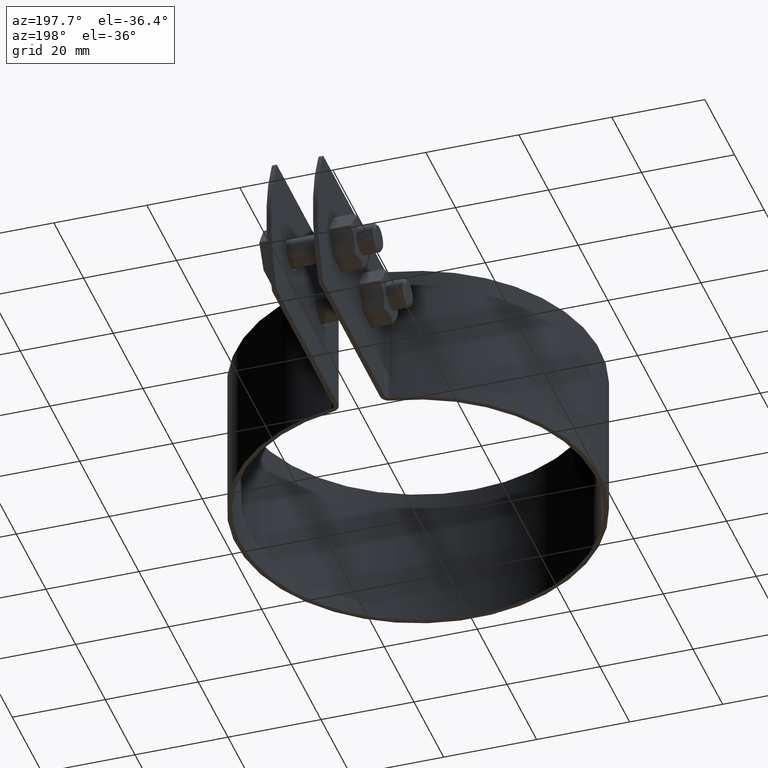
[diagram: clean part render]
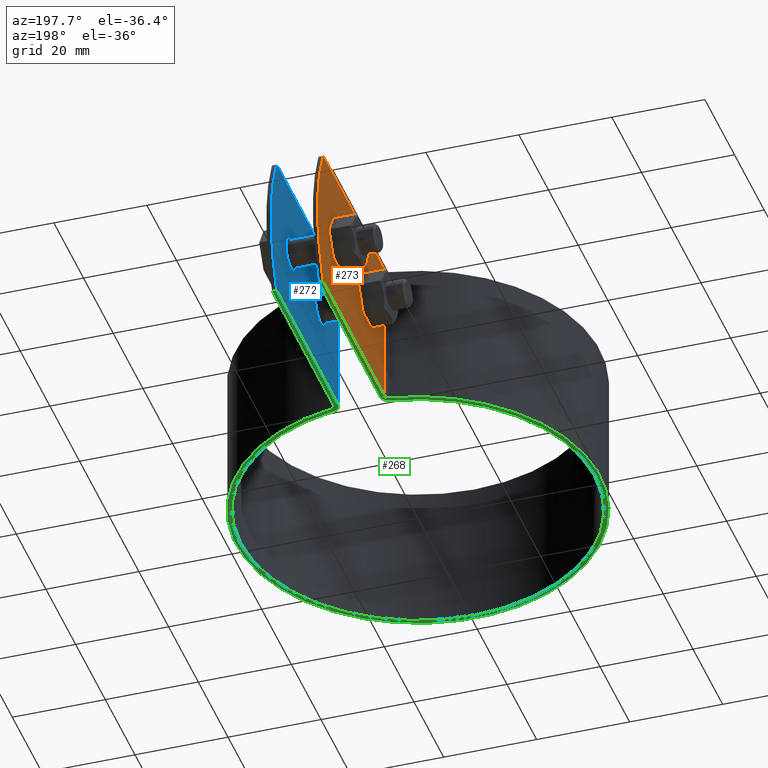
[diagram: same view with three faces highlighted in distinct colors, each labeled with its STEP entity id]
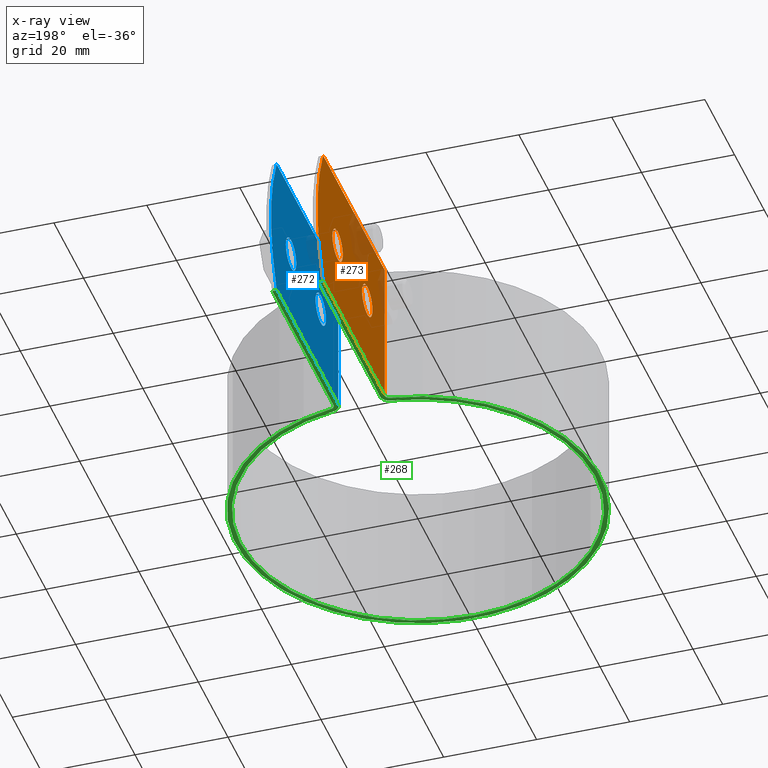
[diagram: x-ray of the same camera — body ghosted, the three highlighted faces saturated]
A machine part, auxiliary view with three faces highlighted in distinct colors.
The next image is the same camera in x-ray (body ghosted, the three faces saturated) — at least one of them is partly hidden behind the body in this view.
Their STEP definitions:

[orange] entity #273 — the highlighted planar face has unit normal (-1, 0, 0).
#273 = ADVANCED_FACE( '', ( #375, #376, #377 ), #378, .T. );
#375 = FACE_BOUND( '', #583, .T. );
#376 = FACE_OUTER_BOUND( '', #584, .T. );
#377 = FACE_BOUND( '', #585, .T. );
#378 = PLANE( '', #586 );
#583 = EDGE_LOOP( '', ( #830 ) );
#584 = EDGE_LOOP( '', ( #831, #832, #833, #834, #835, #836 ) );
#585 = EDGE_LOOP( '', ( #837 ) );
#586 = AXIS2_PLACEMENT_3D( '', #838, #839, #840 );
#830 = ORIENTED_EDGE( '', *, *, #1472, .T. );
#831 = ORIENTED_EDGE( '', *, *, #1471, .T. );
#832 = ORIENTED_EDGE( '', *, *, #1480, .T. );
#833 = ORIENTED_EDGE( '', *, *, #1461, .T. );
#834 = ORIENTED_EDGE( '', *, *, #1481, .T. );
#835 = ORIENTED_EDGE( '', *, *, #1482, .F. );
#836 = ORIENTED_EDGE( '', *, *, #1469, .T. );
#837 = ORIENTED_EDGE( '', *, *, #1483, .T. );
#838 = CARTESIAN_POINT( '', ( -5.50000000000000, 84.8836706246900, -16.0000000000000 ) );
#839 = DIRECTION( '', ( -1.00000000000000, 6.06692130572647E-017, 0.000000000000000 ) );
#840 = DIRECTION( '', ( -6.06692130572647E-017, -1.00000000000000, 0.000000000000000 ) );
#1461 = EDGE_CURVE( '', #1677, #1675, #1678, .T. );
#1469 = EDGE_CURVE( '', #1687, #1689, #1691, .T. );
#1471 = EDGE_CURVE( '', #1689, #1692, #1694, .T. );
#1472 = EDGE_CURVE( '', #1695, #1695, #1696, .F. );
#1480 = EDGE_CURVE( '', #1692, #1677, #1710, .T. );
#1481 = EDGE_CURVE( '', #1675, #1711, #1712, .T. );
#1482 = EDGE_CURVE( '', #1687, #1711, #1713, .T. );
#1483 = EDGE_CURVE( '', #1714, #1714, #1715, .F. );
#1675 = VERTEX_POINT( '', #2022 );
#1677 = VERTEX_POINT( '', #2024 );
#1678 = LINE( '', #2025, #2026 );
#1687 = VERTEX_POINT( '', #2037 );
#1689 = VERTEX_POINT( '', #2040 );
#1691 = LINE( '', #2043, #2044 );
#1692 = VERTEX_POINT( '', #2045 );
#1694 = CIRCLE( '', #2048, 35.0000000000000 );
#1695 = VERTEX_POINT( '', #2049 );
#1696 = CIRCLE( '', #2050, 3.50000000000000 );
#1710 = LINE( '', #2068, #2069 );
#1711 = VERTEX_POINT( '', #2070 );
#1712 = LINE( '', #2071, #2072 );
#1713 = LINE( '', #2073, #2074 );
#1714 = VERTEX_POINT( '', #2075 );
#1715 = CIRCLE( '', #2076, 3.50000000000000 );
#2022 = CARTESIAN_POINT( '', ( -5.50000000000000, 39.6203546172924, -16.0000000000000 ) );
#2024 = CARTESIAN_POINT( '', ( -5.50000000000000, 81.0321055773485, -16.0000000000000 ) );
#2025 = CARTESIAN_POINT( '', ( -5.50000000000000, 84.8836706246900, -16.0000000000000 ) );
#2026 = VECTOR( '', #2579, 1000.00000000000 );
#2037 = CARTESIAN_POINT( '', ( -5.50000000000000, 81.0321055773485, 16.0000000000000 ) );
#2040 = CARTESIAN_POINT( '', ( -5.50000000000000, 81.5064472263738, 15.0000000000000 ) );
#2043 = CARTESIAN_POINT( '', ( -5.49999999999999, 94.1305014177241, -11.6138430333747 ) );
#2044 = VECTOR( '', #2593, 1000.00000000000 );
#2045 = CARTESIAN_POINT( '', ( -5.50000000000002, 81.5064472263738, -15.0000000000000 ) );
#2048 = AXIS2_PLACEMENT_3D( '', #2595, #2596, #2597 );
#2049 = CARTESIAN_POINT( '', ( -5.49999999999999, 67.8836706246900, -8.67361737988404E-016 ) );
#2050 = AXIS2_PLACEMENT_3D( '', #2598, #2599, #2600 );
#2068 = CARTESIAN_POINT( '', ( -5.50000000000000, 81.7395358921664, -14.5086059462172 ) );
#2069 = VECTOR( '', #2614, 1000.00000000000 );
#2070 = CARTESIAN_POINT( '', ( -5.50000000000000, 39.6203546172924, 16.0000000000000 ) );
#2071 = CARTESIAN_POINT( '', ( -5.50000000000000, 39.6203546172924, -16.0000000000000 ) );
#2072 = VECTOR( '', #2615, 1000.00000000000 );
#2073 = CARTESIAN_POINT( '', ( -5.50000000000000, 84.8836706246900, 16.0000000000000 ) );
#2074 = VECTOR( '', #2616, 1000.00000000000 );
#2075 = CARTESIAN_POINT( '', ( -5.49999999999999, 47.8836706246900, -8.67361737988404E-016 ) );
#2076 = AXIS2_PLACEMENT_3D( '', #2617, #2618, #2619 );
#2579 = DIRECTION( '', ( -6.06692130572647E-017, -1.00000000000000, 0.000000000000000 ) );
#2593 = DIRECTION( '', ( 2.60010913102563E-017, 0.428571428571429, -0.903507902905251 ) );
#2595 = CARTESIAN_POINT( '', ( -5.49999999999999, 49.8836706246900, -2.77555756156289E-014 ) );
#2596 = DIRECTION( '', ( -1.00000000000000, 6.06692130572647E-017, 0.000000000000000 ) );
#2597 = DIRECTION( '', ( -6.06692130572647E-017, -1.00000000000000, 0.000000000000000 ) );
#2598 = CARTESIAN_POINT( '', ( -5.49999999999999, 71.3836706246900, -8.67361737988404E-016 ) );
#2599 = DIRECTION( '', ( -1.00000000000000, 6.06692130572647E-017, 0.000000000000000 ) );
#2600 = DIRECTION( '', ( -6.06692130572647E-017, -1.00000000000000, 0.000000000000000 ) );
#2614 = DIRECTION( '', ( -2.60010913102563E-017, -0.428571428571429, -0.903507902905251 ) );
#2615 = DIRECTION( '', ( 0.000000000000000, 0.000000000000000, 1.00000000000000 ) );
#2616 = DIRECTION( '', ( -6.06692130572647E-017, -1.00000000000000, 0.000000000000000 ) );
#2617 = CARTESIAN_POINT( '', ( -5.49999999999999, 51.3836706246900, -8.67361737988404E-016 ) );
#2618 = DIRECTION( '', ( -1.00000000000000, 6.06692130572647E-017, 0.000000000000000 ) );
#2619 = DIRECTION( '', ( -6.06692130572647E-017, -1.00000000000000, 0.000000000000000 ) );

[blue] entity #272 — the highlighted planar face has unit normal (1, -0, 0).
#272 = ADVANCED_FACE( '', ( #371, #372, #373 ), #374, .F. );
#371 = FACE_BOUND( '', #579, .T. );
#372 = FACE_OUTER_BOUND( '', #580, .T. );
#373 = FACE_BOUND( '', #581, .T. );
#374 = PLANE( '', #582 );
#579 = EDGE_LOOP( '', ( #819 ) );
#580 = EDGE_LOOP( '', ( #820, #821, #822, #823, #824, #825 ) );
#581 = EDGE_LOOP( '', ( #826 ) );
#582 = AXIS2_PLACEMENT_3D( '', #827, #828, #829 );
#819 = ORIENTED_EDGE( '', *, *, #1473, .F. );
#820 = ORIENTED_EDGE( '', *, *, #1474, .F. );
#821 = ORIENTED_EDGE( '', *, *, #1466, .F. );
#822 = ORIENTED_EDGE( '', *, *, #1475, .T. );
#823 = ORIENTED_EDGE( '', *, *, #1476, .T. );
#824 = ORIENTED_EDGE( '', *, *, #1477, .F. );
#825 = ORIENTED_EDGE( '', *, *, #1478, .F. );
#826 = ORIENTED_EDGE( '', *, *, #1479, .F. );
#827 = CARTESIAN_POINT( '', ( 4.50000000000000, 39.6203546172924, -16.0000000000000 ) );
#828 = DIRECTION( '', ( 1.00000000000000, -6.06692130572647E-017, 0.000000000000000 ) );
#829 = DIRECTION( '', ( 6.06692130572647E-017, 1.00000000000000, 0.000000000000000 ) );
#1466 = EDGE_CURVE( '', #1684, #1667, #1686, .T. );
#1473 = EDGE_CURVE( '', #1697, #1697, #1698, .F. );
#1474 = EDGE_CURVE( '', #1667, #1699, #1700, .T. );
#1475 = EDGE_CURVE( '', #1684, #1701, #1702, .T. );
#1476 = EDGE_CURVE( '', #1701, #1703, #1704, .T. );
#1477 = EDGE_CURVE( '', #1705, #1703, #1706, .T. );
#1478 = EDGE_CURVE( '', #1699, #1705, #1707, .T. );
#1479 = EDGE_CURVE( '', #1708, #1708, #1709, .F. );
#1667 = VERTEX_POINT( '', #2012 );
#1684 = VERTEX_POINT( '', #2033 );
#1686 = LINE( '', #2035, #2036 );
#1697 = VERTEX_POINT( '', #2051 );
#1698 = CIRCLE( '', #2052, 3.50000000000000 );
#1699 = VERTEX_POINT( '', #2053 );
#1700 = LINE( '', #2054, #2055 );
#1701 = VERTEX_POINT( '', #2056 );
#1702 = LINE( '', #2057, #2058 );
#1703 = VERTEX_POINT( '', #2059 );
#1704 = LINE( '', #2060, #2061 );
#1705 = VERTEX_POINT( '', #2062 );
#1706 = LINE( '', #2063, #2064 );
#1707 = CIRCLE( '', #2065, 35.0000000000000 );
#1708 = VERTEX_POINT( '', #2066 );
#1709 = CIRCLE( '', #2067, 3.50000000000000 );
#2012 = CARTESIAN_POINT( '', ( 4.50000000000000, 81.0321055773485, -16.0000000000000 ) );
#2033 = CARTESIAN_POINT( '', ( 4.50000000000000, 39.6203546172924, -16.0000000000000 ) );
#2035 = CARTESIAN_POINT( '', ( 4.50000000000000, 39.6203546172924, -16.0000000000000 ) );
#2036 = VECTOR( '', #2590, 1000.00000000000 );
#2051 = CARTESIAN_POINT( '', ( 4.50000000000000, 74.8836706246900, -8.67361737988404E-016 ) );
#2052 = AXIS2_PLACEMENT_3D( '', #2601, #2602, #2603 );
#2053 = CARTESIAN_POINT( '', ( 4.49999999999998, 81.5064472263738, -15.0000000000000 ) );
#2054 = CARTESIAN_POINT( '', ( 4.50000000000000, 73.4258656050934, -32.0353618280949 ) );
#2055 = VECTOR( '', #2604, 1000.00000000000 );
#2056 = CARTESIAN_POINT( '', ( 4.50000000000000, 39.6203546172924, 16.0000000000000 ) );
#2057 = CARTESIAN_POINT( '', ( 4.50000000000000, 39.6203546172924, -16.0000000000000 ) );
#2058 = VECTOR( '', #2605, 1000.00000000000 );
#2059 = CARTESIAN_POINT( '', ( 4.50000000000000, 81.0321055773485, 16.0000000000000 ) );
#2060 = CARTESIAN_POINT( '', ( 4.50000000000000, 39.6203546172924, 16.0000000000000 ) );
#2061 = VECTOR( '', #2606, 1000.00000000000 );
#2062 = CARTESIAN_POINT( '', ( 4.49999999999998, 81.5064472263738, 15.0000000000000 ) );
#2063 = CARTESIAN_POINT( '', ( 4.50000000000000, 85.8168311306510, 5.91291284850313 ) );
#2064 = VECTOR( '', #2607, 1000.00000000000 );
#2065 = AXIS2_PLACEMENT_3D( '', #2608, #2609, #2610 );
#2066 = CARTESIAN_POINT( '', ( 4.50000000000000, 54.8836706246900, -8.67361737988404E-016 ) );
#2067 = AXIS2_PLACEMENT_3D( '', #2611, #2612, #2613 );
#2590 = DIRECTION( '', ( 6.06692130572647E-017, 1.00000000000000, 0.000000000000000 ) );
#2601 = CARTESIAN_POINT( '', ( 4.50000000000000, 71.3836706246900, -8.67361737988404E-016 ) );
#2602 = DIRECTION( '', ( 1.00000000000000, -6.06692130572647E-017, 0.000000000000000 ) );
#2603 = DIRECTION( '', ( 6.06692130572647E-017, 1.00000000000000, 0.000000000000000 ) );
#2604 = DIRECTION( '', ( 2.60010913102563E-017, 0.428571428571429, 0.903507902905251 ) );
#2605 = DIRECTION( '', ( 0.000000000000000, 0.000000000000000, 1.00000000000000 ) );
#2606 = DIRECTION( '', ( 6.06692130572647E-017, 1.00000000000000, 0.000000000000000 ) );
#2607 = DIRECTION( '', ( -2.60010913102563E-017, -0.428571428571429, 0.903507902905251 ) );
#2608 = CARTESIAN_POINT( '', ( 4.50000000000000, 49.8836706246900, -2.77555756156289E-014 ) );
#2609 = DIRECTION( '', ( 1.00000000000000, -6.06692130572647E-017, 0.000000000000000 ) );
#2610 = DIRECTION( '', ( 6.06692130572647E-017, 1.00000000000000, 0.000000000000000 ) );
#2611 = CARTESIAN_POINT( '', ( 4.50000000000000, 51.3836706246900, -8.67361737988404E-016 ) );
#2612 = DIRECTION( '', ( 1.00000000000000, -6.06692130572647E-017, 0.000000000000000 ) );
#2613 = DIRECTION( '', ( 6.06692130572647E-017, 1.00000000000000, 0.000000000000000 ) );

[green] entity #268 — the highlighted planar face has unit normal (0, 0, -1).
#268 = ADVANCED_FACE( '', ( #362 ), #363, .T. );
#362 = FACE_OUTER_BOUND( '', #570, .T. );
#363 = PLANE( '', #571 );
#570 = EDGE_LOOP( '', ( #785, #786, #787, #788, #789, #790, #791, #792, #793, #794, #795, #796 ) );
#571 = AXIS2_PLACEMENT_3D( '', #797, #798, #799 );
#785 = ORIENTED_EDGE( '', *, *, #1456, .F. );
#786 = ORIENTED_EDGE( '', *, *, #1457, .F. );
#787 = ORIENTED_EDGE( '', *, *, #1458, .F. );
#788 = ORIENTED_EDGE( '', *, *, #1459, .F. );
#789 = ORIENTED_EDGE( '', *, *, #1460, .F. );
#790 = ORIENTED_EDGE( '', *, *, #1461, .F. );
#791 = ORIENTED_EDGE( '', *, *, #1462, .F. );
#792 = ORIENTED_EDGE( '', *, *, #1454, .T. );
#793 = ORIENTED_EDGE( '', *, *, #1463, .T. );
#794 = ORIENTED_EDGE( '', *, *, #1464, .T. );
#795 = ORIENTED_EDGE( '', *, *, #1465, .T. );
#796 = ORIENTED_EDGE( '', *, *, #1466, .T. );
#797 = CARTESIAN_POINT( '', ( 4.50000000000000, 39.6203546172924, -16.0000000000000 ) );
#798 = DIRECTION( '', ( 0.000000000000000, 0.000000000000000, -1.00000000000000 ) );
#799 = DIRECTION( '', ( 6.06692130572647E-017, 1.00000000000000, 0.000000000000000 ) );
#1454 = EDGE_CURVE( '', #1653, #1661, #1663, .T. );
#1456 = EDGE_CURVE( '', #1666, #1667, #1668, .F. );
#1457 = EDGE_CURVE( '', #1669, #1666, #1670, .T. );
#1458 = EDGE_CURVE( '', #1671, #1669, #1672, .F. );
#1459 = EDGE_CURVE( '', #1673, #1671, #1674, .T. );
#1460 = EDGE_CURVE( '', #1675, #1673, #1676, .F. );
#1461 = EDGE_CURVE( '', #1677, #1675, #1678, .T. );
#1462 = EDGE_CURVE( '', #1653, #1677, #1679, .F. );
#1463 = EDGE_CURVE( '', #1661, #1680, #1681, .T. );
#1464 = EDGE_CURVE( '', #1680, #1682, #1683, .T. );
#1465 = EDGE_CURVE( '', #1682, #1684, #1685, .T. );
#1466 = EDGE_CURVE( '', #1684, #1667, #1686, .T. );
#1653 = VERTEX_POINT( '', #1993 );
#1661 = VERTEX_POINT( '', #2004 );
#1663 = LINE( '', #2007, #2008 );
#1666 = VERTEX_POINT( '', #2011 );
#1667 = VERTEX_POINT( '', #2012 );
#1668 = LINE( '', #2013, #2014 );
#1669 = VERTEX_POINT( '', #2015 );
#1670 = LINE( '', #2016, #2017 );
#1671 = VERTEX_POINT( '', #2018 );
#1672 = CIRCLE( '', #2019, 1.00000000000000 );
#1673 = VERTEX_POINT( '', #2020 );
#1674 = CIRCLE( '', #2021, 39.1500000000000 );
#1675 = VERTEX_POINT( '', #2022 );
#1676 = CIRCLE( '', #2023, 1.00000000000000 );
#1677 = VERTEX_POINT( '', #2024 );
#1678 = LINE( '', #2025, #2026 );
#1679 = LINE( '', #2027, #2028 );
#1680 = VERTEX_POINT( '', #2029 );
#1681 = CIRCLE( '', #2030, 2.00000000000000 );
#1682 = VERTEX_POINT( '', #2031 );
#1683 = CIRCLE( '', #2032, 38.1500000000000 );
#1684 = VERTEX_POINT( '', #2033 );
#1685 = CIRCLE( '', #2034, 2.00000000000000 );
#1686 = LINE( '', #2035, #2036 );
#1993 = CARTESIAN_POINT( '', ( -4.50000000000000, 81.0321055773485, -16.0000000000000 ) );
#2004 = CARTESIAN_POINT( '', ( -4.50000000000000, 39.6203546172924, -16.0000000000000 ) );
#2007 = CARTESIAN_POINT( '', ( -4.50000000000000, 84.8836706246900, -16.0000000000000 ) );
#2008 = VECTOR( '', #2564, 1000.00000000000 );
#2011 = CARTESIAN_POINT( '', ( 5.50000000000001, 81.0321055773486, -16.0000000000000 ) );
#2012 = CARTESIAN_POINT( '', ( 4.50000000000000, 81.0321055773485, -16.0000000000000 ) );
#2013 = CARTESIAN_POINT( '', ( 4.50000000000000, 81.0321055773485, -16.0000000000000 ) );
#2014 = VECTOR( '', #2568, 1000.00000000000 );
#2015 = CARTESIAN_POINT( '', ( 5.50000000000000, 39.6203546172924, -16.0000000000000 ) );
#2016 = CARTESIAN_POINT( '', ( 5.50000000000000, 39.6203546172924, -16.0000000000000 ) );
#2017 = VECTOR( '', #2569, 1000.00000000000 );
#2018 = CARTESIAN_POINT( '', ( 6.33810709838107, 38.6335462831132, -16.0000000000000 ) );
#2019 = AXIS2_PLACEMENT_3D( '', #2570, #2571, #2572 );
#2020 = CARTESIAN_POINT( '', ( -6.33810709838105, 38.6335462831132, -16.0000000000000 ) );
#2021 = AXIS2_PLACEMENT_3D( '', #2573, #2574, #2575 );
#2022 = CARTESIAN_POINT( '', ( -5.50000000000000, 39.6203546172924, -16.0000000000000 ) );
#2023 = AXIS2_PLACEMENT_3D( '', #2576, #2577, #2578 );
#2024 = CARTESIAN_POINT( '', ( -5.50000000000000, 81.0321055773485, -16.0000000000000 ) );
#2025 = CARTESIAN_POINT( '', ( -5.50000000000000, 84.8836706246900, -16.0000000000000 ) );
#2026 = VECTOR( '', #2579, 1000.00000000000 );
#2027 = CARTESIAN_POINT( '', ( 4.50000000000000, 81.0321055773485, -16.0000000000000 ) );
#2028 = VECTOR( '', #2580, 1000.00000000000 );
#2029 = CARTESIAN_POINT( '', ( -6.17621419676214, 37.6467379489341, -16.0000000000000 ) );
#2030 = AXIS2_PLACEMENT_3D( '', #2581, #2582, #2583 );
#2031 = CARTESIAN_POINT( '', ( 6.17621419676214, 37.6467379489341, -16.0000000000000 ) );
#2032 = AXIS2_PLACEMENT_3D( '', #2584, #2585, #2586 );
#2033 = CARTESIAN_POINT( '', ( 4.50000000000000, 39.6203546172924, -16.0000000000000 ) );
#2034 = AXIS2_PLACEMENT_3D( '', #2587, #2588, #2589 );
#2035 = CARTESIAN_POINT( '', ( 4.50000000000000, 39.6203546172924, -16.0000000000000 ) );
#2036 = VECTOR( '', #2590, 1000.00000000000 );
#2564 = DIRECTION( '', ( -6.06692130572647E-017, -1.00000000000000, 0.000000000000000 ) );
#2568 = DIRECTION( '', ( 1.00000000000000, -6.06692130572647E-017, 0.000000000000000 ) );
#2569 = DIRECTION( '', ( 6.06692130572647E-017, 1.00000000000000, 0.000000000000000 ) );
#2570 = CARTESIAN_POINT( '', ( 6.50000000000000, 39.6203546172924, -16.0000000000000 ) );
#2571 = DIRECTION( '', ( 0.000000000000000, 0.000000000000000, 1.00000000000000 ) );
#2572 = DIRECTION( '', ( 1.00000000000000, 0.000000000000000, 0.000000000000000 ) );
#2573 = CARTESIAN_POINT( '', ( 0.000000000000000, 0.000000000000000, -16.0000000000000 ) );
#2574 = DIRECTION( '', ( 0.000000000000000, 0.000000000000000, 1.00000000000000 ) );
#2575 = DIRECTION( '', ( 1.00000000000000, 0.000000000000000, 0.000000000000000 ) );
#2576 = CARTESIAN_POINT( '', ( -6.50000000000000, 39.6203546172924, -16.0000000000000 ) );
#2577 = DIRECTION( '', ( 0.000000000000000, 0.000000000000000, 1.00000000000000 ) );
#2578 = DIRECTION( '', ( 1.00000000000000, 0.000000000000000, 0.000000000000000 ) );
#2579 = DIRECTION( '', ( -6.06692130572647E-017, -1.00000000000000, 0.000000000000000 ) );
#2580 = DIRECTION( '', ( 1.00000000000000, -6.06692130572647E-017, 0.000000000000000 ) );
#2581 = CARTESIAN_POINT( '', ( -6.50000000000000, 39.6203546172924, -16.0000000000000 ) );
#2582 = DIRECTION( '', ( 0.000000000000000, 0.000000000000000, -1.00000000000000 ) );
#2583 = DIRECTION( '', ( 1.00000000000000, -6.06692130572647E-017, 0.000000000000000 ) );
#2584 = CARTESIAN_POINT( '', ( 0.000000000000000, 0.000000000000000, -16.0000000000000 ) );
#2585 = DIRECTION( '', ( 0.000000000000000, 0.000000000000000, 1.00000000000000 ) );
#2586 = DIRECTION( '', ( 1.00000000000000, -6.06692130572647E-017, 0.000000000000000 ) );
#2587 = CARTESIAN_POINT( '', ( 6.50000000000000, 39.6203546172924, -16.0000000000000 ) );
#2588 = DIRECTION( '', ( 0.000000000000000, 0.000000000000000, -1.00000000000000 ) );
#2589 = DIRECTION( '', ( -1.00000000000000, 6.06692130572647E-017, 0.000000000000000 ) );
#2590 = DIRECTION( '', ( 6.06692130572647E-017, 1.00000000000000, 0.000000000000000 ) );